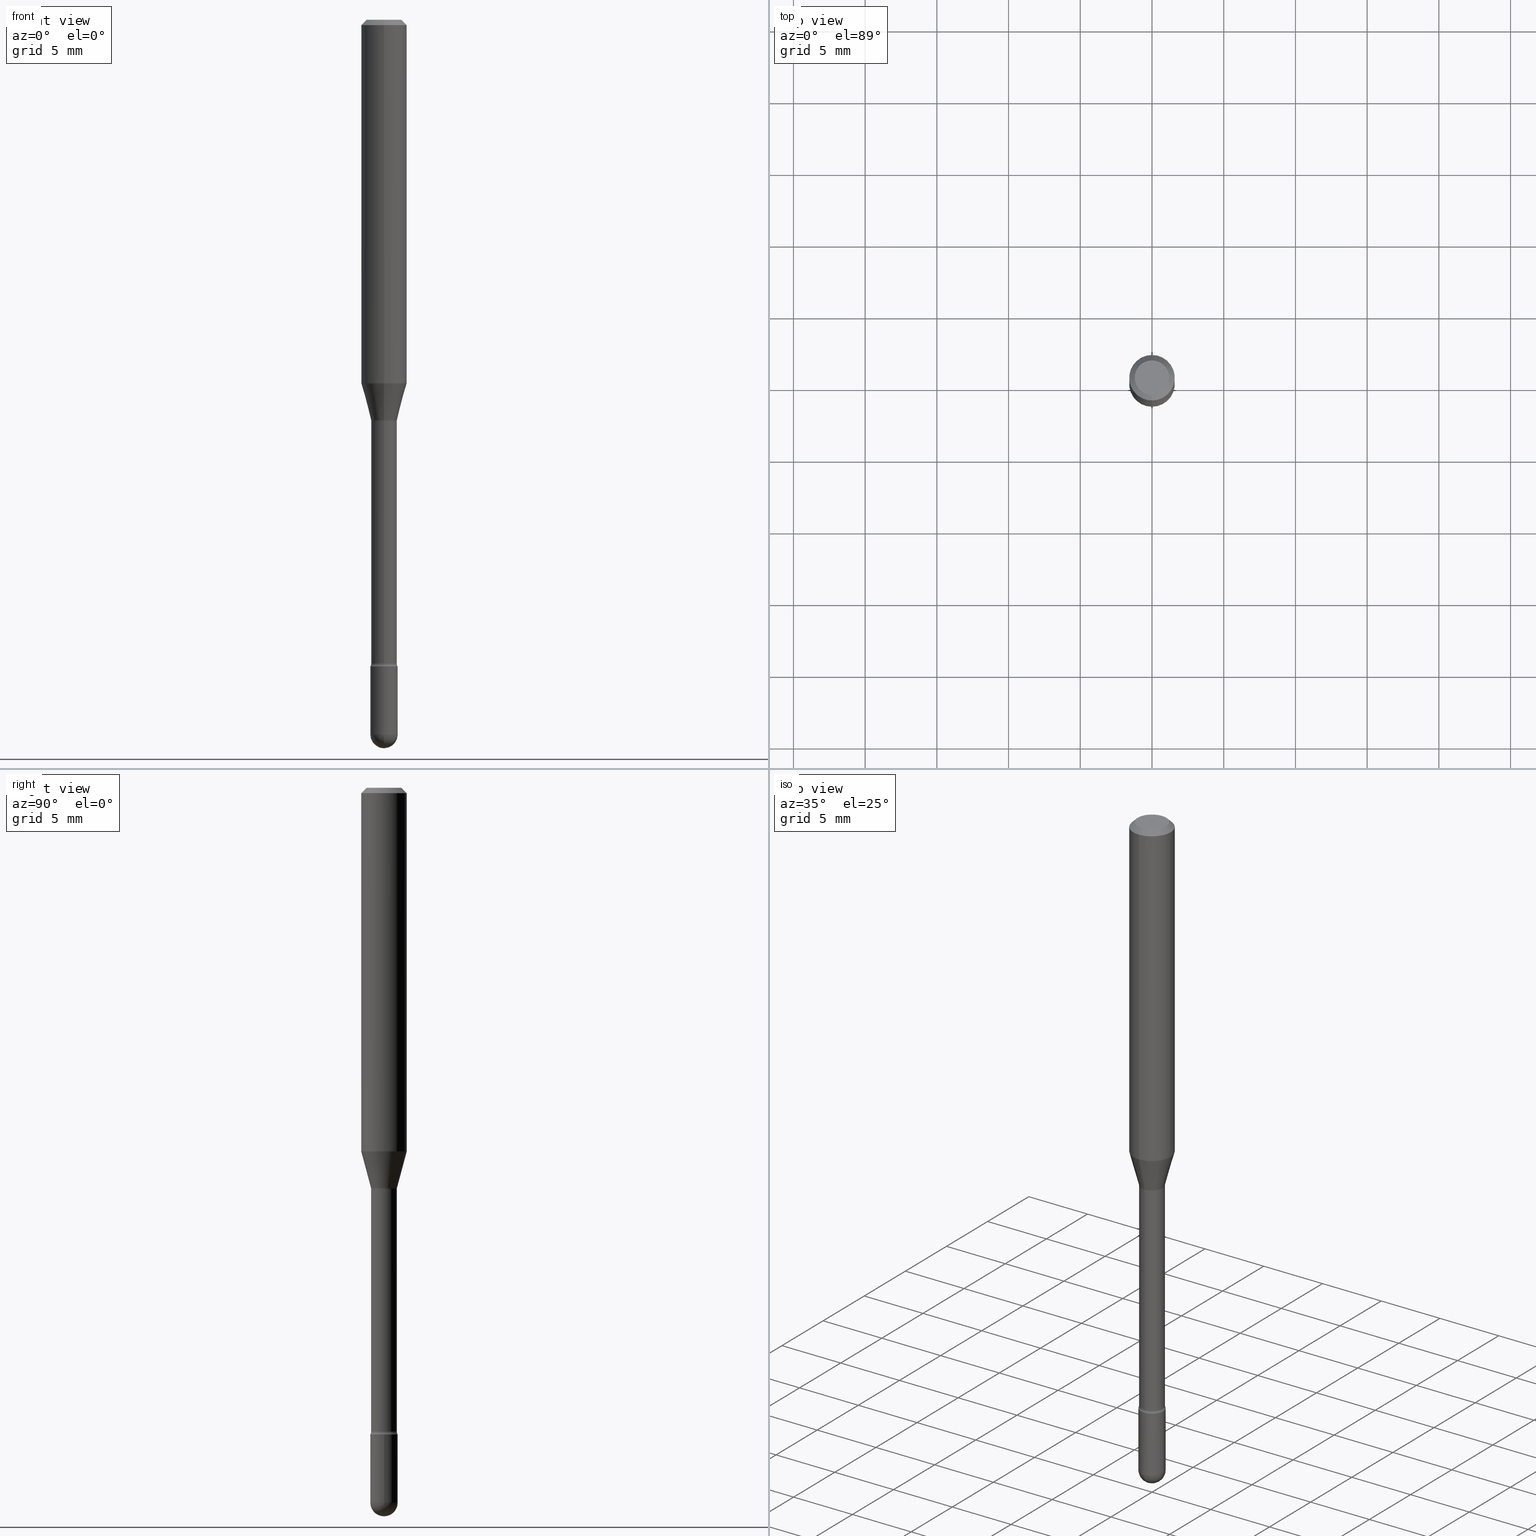
[diagram: canonical four-view strip — front | top / right | iso, engineering-drawing reading convention]
A machine part, canonical four-view strip (front | top / right | iso — engineering-drawing reading convention). The complete STEP part file that produces these views, byte-faithful:
ISO-10303-21;
HEADER;
FILE_DESCRIPTION (( 'STEP AP203' ),
    '1' );
FILE_NAME ('09330.STEP',
    '2024-04-09T22:34:05',
    ( '' ),
    ( '' ),
    'SwSTEP 2.0',
    'SolidWorks 2023',
    '' );
FILE_SCHEMA (( 'CONFIG_CONTROL_DESIGN' ));
ENDSEC;

DATA;
#1 = FACE_OUTER_BOUND ( 'NONE', #80, .T. ) ;
#2 = CARTESIAN_POINT ( 'NONE',  ( 2.664535259100808486E-16, 0.03749999999999379524, -1.775000000000000133 ) ) ;
#3 = AXIS2_PLACEMENT_3D ( 'NONE', #563, #399, #353 ) ;
#4 = VECTOR ( 'NONE', #23, 39.37007874015748143 ) ;
#5 = ORIENTED_EDGE ( 'NONE', *, *, #473, .T. ) ;
#6 = EDGE_CURVE ( 'NONE', #238, #259, #223, .T. ) ;
#7 = FACE_OUTER_BOUND ( 'NONE', #106, .T. ) ;
#8 = CC_DESIGN_DATE_AND_TIME_ASSIGNMENT ( #207, #115, ( #332 ) ) ;
#9 = CARTESIAN_POINT ( 'NONE',  ( 4.340707130978617347E-29, -6.197379376446583794E-15, -1.775000000000000133 ) ) ;
#10 = EDGE_LOOP ( 'NONE', ( #56, #212, #231, #66 ) ) ;
#11 = CARTESIAN_POINT ( 'NONE',  ( 4.440892098500869722E-16, 0.06249999999999653055, -0.9983016154937485176 ) ) ;
#12 = DIRECTION ( 'NONE',  ( -6.982962677686266711E-15, -1.000000000000000000, 3.819579138641765120E-15 ) ) ;
#13 = ADVANCED_FACE ( 'NONE', ( #276 ), #50, .T. ) ;
#14 = CIRCLE ( 'NONE', #201, 0.03525000000000008682 ) ;
#15 = CC_DESIGN_APPROVAL ( #117, ( #332 ) ) ;
#16 = DIRECTION ( 'NONE',  ( -6.982962677686265922E-15, -1.000000000000000000, 3.491486425241759159E-15 ) ) ;
#17 = CARTESIAN_POINT ( 'NONE',  ( 2.618611004132830729E-16, 0.03749999999999317074, -1.962499999999999689 ) ) ;
#18 = CARTESIAN_POINT ( 'NONE',  ( 3.840629472727447874E-16, 0.04749999999999999362, -2.485923956665947374E-16 ) ) ;
#19 = LINE ( 'NONE', #153, #4 ) ;
#20 = CIRCLE ( 'NONE', #564, 0.03749999999999999861 ) ;
#21 = CIRCLE ( 'NONE', #52, 0.01499999999999998557 ) ;
#22 = ADVANCED_FACE ( 'NONE', ( #307 ), #149, .T. ) ;
#23 = DIRECTION ( 'NONE',  ( 4.937700262164548042E-15, 0.7071067811865451302, -0.7071067811865499042 ) ) ;
#24 = DIRECTION ( 'NONE',  ( 1.000000000000000000, -6.982962677686268288E-15, 0.000000000000000000 ) ) ;
#25 = SECURITY_CLASSIFICATION_LEVEL ( 'unclassified' ) ;
#26 = CARTESIAN_POINT ( 'NONE',  ( 3.570477247194939493E-16, 0.05024999999999388983, -1.767098259685361050 ) ) ;
#27 = ADVANCED_FACE ( 'NONE', ( #1 ), #489, .T. ) ;
#28 = ORIENTED_EDGE ( 'NONE', *, *, #537, .F. ) ;
#29 = EDGE_LOOP ( 'NONE', ( #157, #534 ) ) ;
#30 = DIRECTION ( 'NONE',  ( -6.982962677686265922E-15, -1.000000000000000000, 4.370956789862821150E-15 ) ) ;
#31 = DIRECTION ( 'NONE',  ( -2.445465254371968142E-29, 3.491486425241759553E-15, 1.000000000000000000 ) ) ;
#32 = CIRCLE ( 'NONE', #414, 0.06250000000000000000 ) ;
#33 = EDGE_CURVE ( 'NONE', #99, #333, #460, .T. ) ;
#34 = CIRCLE ( 'NONE', #471, 0.03749999999999999861 ) ;
#35 = ORIENTED_EDGE ( 'NONE', *, *, #347, .T. ) ;
#36 = CARTESIAN_POINT ( 'NONE',  ( 4.321383671524591751E-29, -6.169790597593636121E-15, -1.767098259685360606 ) ) ;
#37 = DIRECTION ( 'NONE',  ( -2.445465254371968142E-29, 3.491486425241759553E-15, 1.000000000000000000 ) ) ;
#38 = CC_DESIGN_PERSON_AND_ORGANIZATION_ASSIGNMENT ( #338, #514, ( #191 ) ) ;
#39 = ORIENTED_EDGE ( 'NONE', *, *, #266, .T. ) ;
#40 = DIRECTION ( 'NONE',  ( -2.445465254371968142E-29, 3.491486425241759553E-15, 1.000000000000000000 ) ) ;
#41 = DIRECTION ( 'NONE',  ( -6.982962677686265922E-15, -1.000000000000000000, 3.491486425241759948E-15 ) ) ;
#42 = VECTOR ( 'NONE', #527, 39.37007874015748143 ) ;
#43 = CARTESIAN_POINT ( 'NONE',  ( -2.664535259099897351E-16, -0.03750000000000687506, -1.962499999999999689 ) ) ;
#44 = CALENDAR_DATE ( 2024, 9, 4 ) ;
#45 = CARTESIAN_POINT ( 'NONE',  ( 2.685347059207164379E-29, -3.833975063650027197E-15, -1.098092501787273134 ) ) ;
#46 = LINE ( 'NONE', #193, #188 ) ;
#47 = ADVANCED_FACE ( 'NONE', ( #169 ), #478, .F. ) ;
#48 = FACE_OUTER_BOUND ( 'NONE', #453, .T. ) ;
#49 = ORIENTED_EDGE ( 'NONE', *, *, #141, .F. ) ;
#50 = CONICAL_SURFACE ( 'NONE', #160, 0.06250000000000000000, 0.7853981633974483900 ) ;
#51 = COORDINATED_UNIVERSAL_TIME_OFFSET ( 5, 0, .BEHIND. ) ;
#52 = AXIS2_PLACEMENT_3D ( 'NONE', #250, #383, #510 ) ;
#53 = CARTESIAN_POINT ( 'NONE',  ( 2.694844967945245181E-29, -3.847524406305537036E-15, -1.101974787463810834 ) ) ;
#54 = DIRECTION ( 'NONE',  ( -6.982962677686266711E-15, -1.000000000000000000, 0.000000000000000000 ) ) ;
#55 = CARTESIAN_POINT ( 'NONE',  ( -2.461494343884138594E-16, -0.03525000000000384076, -1.101974787463810834 ) ) ;
#56 = ORIENTED_EDGE ( 'NONE', *, *, #545, .F. ) ;
#57 = DIRECTION ( 'NONE',  ( -2.445465254371968142E-29, 3.491486425241759553E-15, 1.000000000000000000 ) ) ;
#58 = PLANE ( 'NONE',  #488 ) ;
#59 = EDGE_CURVE ( 'NONE', #62, #354, #516, .T. ) ;
#60 = VERTEX_POINT ( 'NONE', #270 ) ;
#61 = DIRECTION ( 'NONE',  ( 1.000000000000000000, -7.105427357601001070E-15, 4.926315570832500212E-29 ) ) ;
#62 = VERTEX_POINT ( 'NONE', #404 ) ;
#63 = AXIS2_PLACEMENT_3D ( 'NONE', #262, #217, #321 ) ;
#64 = CIRCLE ( 'NONE', #435, 0.01499999999999997689 ) ;
#65 = DIRECTION ( 'NONE',  ( -6.982962677686265922E-15, -1.000000000000000000, 3.491486425241759159E-15 ) ) ;
#66 = ORIENTED_EDGE ( 'NONE', *, *, #120, .F. ) ;
#67 = ADVANCED_FACE ( 'NONE', ( #7 ), #362, .T. ) ;
#68 = DIRECTION ( 'NONE',  ( -2.445468806185136597E-29, 3.491481338843145583E-15, 1.000000000000000000 ) ) ;
#69 = PERSON_AND_ORGANIZATION ( #214, #167 ) ;
#70 = ORIENTED_EDGE ( 'NONE', *, *, #545, .T. ) ;
#71 = ORIENTED_EDGE ( 'NONE', *, *, #96, .F. ) ;
#72 = AXIS2_PLACEMENT_3D ( 'NONE', #53, #415, #16 ) ;
#73 = CONICAL_SURFACE ( 'NONE', #178, 0.03576111260566397498, 0.2617993877991499629 ) ;
#74 = CARTESIAN_POINT ( 'NONE',  ( 0.000000000000000000, 0.000000000000000000, 0.000000000000000000 ) ) ;
#75 = ORIENTED_EDGE ( 'NONE', *, *, #314, .T. ) ;
#76 = DIRECTION ( 'NONE',  ( 6.982962677686265922E-15, 1.000000000000000000, 0.000000000000000000 ) ) ;
#77 = ADVANCED_FACE ( 'NONE', ( #213 ), #268, .F. ) ;
#78 = ORIENTED_EDGE ( 'NONE', *, *, #396, .T. ) ;
#79 = CARTESIAN_POINT ( 'NONE',  ( -2.497185146378605472E-16, -0.03576111260566781219, -1.098092501787272912 ) ) ;
#80 = EDGE_LOOP ( 'NONE', ( #501, #155, #242, #467 ) ) ;
#81 = AXIS2_PLACEMENT_3D ( 'NONE', #185, #370, #132 ) ;
#82 = CIRCLE ( 'NONE', #277, 0.04749999999999999362 ) ;
#83 = DIRECTION ( 'NONE',  ( 6.982962677686265922E-15, 1.000000000000000000, -3.483106191921935554E-15 ) ) ;
#84 = CYLINDRICAL_SURFACE ( 'NONE', #550, 0.03749999999999999861 ) ;
#85 = CC_DESIGN_DATE_AND_TIME_ASSIGNMENT ( #93, #408, ( #400 ) ) ;
#86 = CARTESIAN_POINT ( 'NONE',  ( 2.584599201327800595E-16, 0.03524999999999392508, -1.767098259685360384 ) ) ;
#87 = ORIENTED_EDGE ( 'NONE', *, *, #463, .T. ) ;
#88 = CARTESIAN_POINT ( 'NONE',  ( -2.618611004131915157E-16, -0.03750000000000618811, -1.775000000000000133 ) ) ;
#89 =( NAMED_UNIT ( * ) SI_UNIT ( $, .STERADIAN. ) SOLID_ANGLE_UNIT ( ) );
#90 = ORIENTED_EDGE ( 'NONE', *, *, #396, .F. ) ;
#91 = DIRECTION ( 'NONE',  ( -2.445468806185136877E-29, 3.491481338843145188E-15, 1.000000000000000000 ) ) ;
#92 = CIRCLE ( 'NONE', #166, 0.03750000000000004025 ) ;
#93 = DATE_AND_TIME ( #494, #320 ) ;
#94 = FACE_OUTER_BOUND ( 'NONE', #543, .T. ) ;
#95 = VERTEX_POINT ( 'NONE', #446 ) ;
#96 = EDGE_CURVE ( 'NONE', #328, #281, #368, .T. ) ;
#97 = DIRECTION ( 'NONE',  ( -2.445465254371968142E-29, 3.491486425241759553E-15, 1.000000000000000000 ) ) ;
#98 = PERSON_AND_ORGANIZATION ( #214, #167 ) ;
#99 = VERTEX_POINT ( 'NONE', #11 ) ;
#100 = FACE_OUTER_BOUND ( 'NONE', #260, .T. ) ;
#101 = ORIENTED_EDGE ( 'NONE', *, *, #473, .F. ) ;
#102 = VECTOR ( 'NONE', #91, 39.37007874015748143 ) ;
#103 = PERSON_AND_ORGANIZATION ( #214, #167 ) ;
#104 = CARTESIAN_POINT ( 'NONE',  ( -1.169113584055446105E-44, 1.669184350826100908E-30, 4.780733988912460139E-16 ) ) ;
#105 = ADVANCED_FACE ( 'NONE', ( #187 ), #150, .F. ) ;
#106 = EDGE_LOOP ( 'NONE', ( #491, #228, #535, #90 ) ) ;
#107 = DIRECTION ( 'NONE',  ( -2.445465254371968142E-29, 3.491486425241759553E-15, 1.000000000000000000 ) ) ;
#108 = PERSON_AND_ORGANIZATION_ROLE ( 'classification_officer' ) ;
#109 = CARTESIAN_POINT ( 'NONE',  ( 3.668197881557972567E-31, -5.237229637862668616E-17, -0.01500000000000008271 ) ) ;
#110 = CARTESIAN_POINT ( 'NONE',  ( 2.694844967945245181E-29, -3.847524406305537036E-15, -1.101974787463810834 ) ) ;
#111 = CIRCLE ( 'NONE', #444, 0.06250000000000000000 ) ;
#112 = CIRCLE ( 'NONE', #416, 0.03576111260566397498 ) ;
#113 = EDGE_CURVE ( 'NONE', #202, #333, #46, .T. ) ;
#114 = DIRECTION ( 'NONE',  ( 7.105427357601001859E-15, 1.000000000000000000, 0.000000000000000000 ) ) ;
#115 = DATE_TIME_ROLE ( 'classification_date' ) ;
#116 = ORIENTED_EDGE ( 'NONE', *, *, #445, .T. ) ;
#117 = APPROVAL ( #251, 'UNSPECIFIED' ) ;
#118 = CIRCLE ( 'NONE', #524, 0.03749999999999999861 ) ;
#119 = AXIS2_PLACEMENT_3D ( 'NONE', #462, #107, #432 ) ;
#120 = EDGE_CURVE ( 'NONE', #127, #312, #434, .T. ) ;
#121 = ORIENTED_EDGE ( 'NONE', *, *, #165, .T. ) ;
#122 = DIRECTION ( 'NONE',  ( -4.851104656540964275E-15, -0.7071067811865500152, -0.7071067811865450192 ) ) ;
#123 = DIRECTION ( 'NONE',  ( -6.982962677686265922E-15, -1.000000000000000000, 3.491486425241759553E-15 ) ) ;
#124 = CYLINDRICAL_SURFACE ( 'NONE', #209, 0.06250000000000000000 ) ;
#125 = ORIENTED_EDGE ( 'NONE', *, *, #161, .T. ) ;
#126 = ORIENTED_EDGE ( 'NONE', *, *, #337, .T. ) ;
#127 = VERTEX_POINT ( 'NONE', #454 ) ;
#128 = ADVANCED_FACE ( 'NONE', ( #532 ), #84, .T. ) ;
#129 = CIRCLE ( 'NONE', #162, 0.03749999999999999861 ) ;
#130 = ORIENTED_EDGE ( 'NONE', *, *, #6, .F. ) ;
#131 = DIRECTION ( 'NONE',  ( -2.445468806185136597E-29, 3.491481338843145583E-15, 1.000000000000000000 ) ) ;
#132 = DIRECTION ( 'NONE',  ( -6.982962677686266711E-15, -1.000000000000000000, 3.819579138641765120E-15 ) ) ;
#133 = ORIENTED_EDGE ( 'NONE', *, *, #357, .F. ) ;
#134 = DIRECTION ( 'NONE',  ( -6.982962677686265922E-15, -1.000000000000000000, 3.491486425241759948E-15 ) ) ;
#135 = CARTESIAN_POINT ( 'NONE',  ( 2.504663143554787774E-16, 0.03524999999999615247, -1.101974787463811278 ) ) ;
#136 = APPROVAL_DATE_TIME ( #225, #304 ) ;
#137 = ORIENTED_EDGE ( 'NONE', *, *, #274, .T. ) ;
#138 = AXIS2_PLACEMENT_3D ( 'NONE', #377, #407, #359 ) ;
#139 = CARTESIAN_POINT ( 'NONE',  ( 2.023527029719468871E-45, -2.889117273218621529E-31, -8.274679046761115566E-17 ) ) ;
#140 = AXIS2_PLACEMENT_3D ( 'NONE', #110, #298, #65 ) ;
#141 = EDGE_CURVE ( 'NONE', #333, #481, #174, .T. ) ;
#142 = ORIENTED_EDGE ( 'NONE', *, *, #347, .F. ) ;
#143 = EDGE_LOOP ( 'NONE', ( #151, #382 ) ) ;
#144 = DIRECTION ( 'NONE',  ( 6.982962677686265922E-15, 1.000000000000000000, 0.000000000000000000 ) ) ;
#145 = CC_DESIGN_PERSON_AND_ORGANIZATION_ASSIGNMENT ( #103, #108, ( #332 ) ) ;
#146 = CARTESIAN_POINT ( 'NONE',  ( 3.668197881557972567E-31, -5.237229637862668616E-17, -0.01500000000000008271 ) ) ;
#147 = CC_DESIGN_PERSON_AND_ORGANIZATION_ASSIGNMENT ( #69, #511, ( #191 ) ) ;
#148 = DIRECTION ( 'NONE',  ( -2.445465254371968142E-29, 3.491486425241759553E-15, 1.000000000000000000 ) ) ;
#149 = CONICAL_SURFACE ( 'NONE', #402, 0.03576111260566397498, 0.2617993877991499629 ) ;
#150 = TOROIDAL_SURFACE ( 'NONE', #72, 0.05024999999999999606, 0.01499999999999998904 ) ;
#151 = ORIENTED_EDGE ( 'NONE', *, *, #248, .F. ) ;
#152 = VERTEX_POINT ( 'NONE', #86 ) ;
#153 = CARTESIAN_POINT ( 'NONE',  ( 4.364351673553919652E-16, 0.06249999999999995143, -0.01500000000000030129 ) ) ;
#154 = CARTESIAN_POINT ( 'NONE',  ( -0.03749999999999999861, -6.258252226053091317E-15, -1.775000000000000133 ) ) ;
#155 = ORIENTED_EDGE ( 'NONE', *, *, #33, .T. ) ;
#156 = CARTESIAN_POINT ( 'NONE',  ( 3.570477247194771860E-16, 0.05024999999999614497, -1.101974787463811056 ) ) ;
#157 = ORIENTED_EDGE ( 'NONE', *, *, #388, .T. ) ;
#158 = ORIENTED_EDGE ( 'NONE', *, *, #372, .F. ) ;
#159 = DIRECTION ( 'NONE',  ( 1.000000000000000000, -6.982962677686268288E-15, 0.000000000000000000 ) ) ;
#160 = AXIS2_PLACEMENT_3D ( 'NONE', #175, #482, #83 ) ;
#161 = EDGE_CURVE ( 'NONE', #99, #95, #177, .T. ) ;
#162 = AXIS2_PLACEMENT_3D ( 'NONE', #331, #163, #159 ) ;
#163 = DIRECTION ( 'NONE',  ( -2.445468806185136597E-29, 3.491481338843145583E-15, 1.000000000000000000 ) ) ;
#164 = DIRECTION ( 'NONE',  ( -1.000000000000000000, 6.982962677686265922E-15, -4.883557194083112901E-29 ) ) ;
#165 = EDGE_CURVE ( 'NONE', #394, #481, #313, .T. ) ;
#166 = AXIS2_PLACEMENT_3D ( 'NONE', #220, #278, #144 ) ;
#167 = ORGANIZATION ( 'UNSPECIFIED', 'UNSPECIFIED', '' ) ;
#168 = CARTESIAN_POINT ( 'NONE',  ( 2.685347059207164379E-29, -3.833975063650027197E-15, -1.098092501787273134 ) ) ;
#169 = FACE_OUTER_BOUND ( 'NONE', #10, .T. ) ;
#170 = CARTESIAN_POINT ( 'NONE',  ( -4.364351673553916201E-16, -0.06250000000000000000, 6.962913004688561093E-16 ) ) ;
#171 = ADVANCED_FACE ( 'NONE', ( #271 ), #124, .T. ) ;
#172 = ORIENTED_EDGE ( 'NONE', *, *, #438, .F. ) ;
#173 = ORIENTED_EDGE ( 'NONE', *, *, #352, .T. ) ;
#174 = LINE ( 'NONE', #170, #222 ) ;
#175 = CARTESIAN_POINT ( 'NONE',  ( 3.668197881557972567E-31, -5.237229637862668616E-17, -0.01500000000000008271 ) ) ;
#176 = AXIS2_PLACEMENT_3D ( 'NONE', #541, #546, #498 ) ;
#177 = LINE ( 'NONE', #267, #42 ) ;
#178 = AXIS2_PLACEMENT_3D ( 'NONE', #45, #412, #12 ) ;
#179 = ADVANCED_BREP_SHAPE_REPRESENTATION ( '09330', ( #336, #525, #224 ), #427 ) ;
#180 = DIRECTION ( 'NONE',  ( -2.445468806185136597E-29, 3.491481338843145583E-15, 1.000000000000000000 ) ) ;
#181 = ORIENTED_EDGE ( 'NONE', *, *, #235, .T. ) ;
#182 = CARTESIAN_POINT ( 'NONE',  ( -0.03749999999999999861, 2.664535259100375598E-16, -1.844600658845589808E-30 ) ) ;
#183 = CARTESIAN_POINT ( 'NONE',  ( 2.441311914073365852E-29, -3.485556538793341018E-15, -0.9983016154937482955 ) ) ;
#184 = ADVANCED_FACE ( 'NONE', ( #439 ), #533, .F. ) ;
#185 = CARTESIAN_POINT ( 'NONE',  ( 2.685347059207164379E-29, -3.833975063650027197E-15, -1.098092501787273134 ) ) ;
#186 = ORIENTED_EDGE ( 'NONE', *, *, #566, .T. ) ;
#187 = FACE_OUTER_BOUND ( 'NONE', #269, .T. ) ;
#188 = VECTOR ( 'NONE', #197, 39.37007874015748143 ) ;
#189 = DIRECTION ( 'NONE',  ( -2.445468806185136597E-29, 3.491481338843145583E-15, 1.000000000000000000 ) ) ;
#190 = DIRECTION ( 'NONE',  ( -2.445468806185136597E-29, 3.491481338843145583E-15, 1.000000000000000000 ) ) ;
#191 = PRODUCT_DEFINITION_FORMATION_WITH_SPECIFIED_SOURCE ( 'ANY', '', #349, .NOT_KNOWN. ) ;
#192 = CARTESIAN_POINT ( 'NONE',  ( 0.000000000000000000, 0.000000000000000000, 0.000000000000000000 ) ) ;
#193 = CARTESIAN_POINT ( 'NONE',  ( -2.497185146378605472E-16, -0.03576111260566781219, -1.098092501787272912 ) ) ;
#194 = FACE_OUTER_BOUND ( 'NONE', #484, .T. ) ;
#195 = LENGTH_MEASURE_WITH_UNIT ( LENGTH_MEASURE( 0.02539999999999999897 ), #499 );
#196 = CC_DESIGN_PERSON_AND_ORGANIZATION_ASSIGNMENT ( #539, #318, ( #400 ) ) ;
#197 = DIRECTION ( 'NONE',  ( -1.807323732225328167E-15, -0.2588190451025179084, 0.9659258262890690894 ) ) ;
#198 = EDGE_LOOP ( 'NONE', ( #254, #125, #142, #49 ) ) ;
#199 = CLOSED_SHELL ( 'NONE', ( #105, #456, #47, #211, #171, #411, #22, #27, #13, #77, #554, #184, #523, #423 ) ) ;
#200 = DIRECTION ( 'NONE',  ( 1.000000000000000000, -6.982962677686268288E-15, 0.000000000000000000 ) ) ;
#201 = AXIS2_PLACEMENT_3D ( 'NONE', #422, #477, #303 ) ;
#202 = VERTEX_POINT ( 'NONE', #79 ) ;
#203 = DIRECTION ( 'NONE',  ( 1.839019923739597949E-15, 0.2588190451025246253, 0.9659258262890670910 ) ) ;
#204 = CALENDAR_DATE ( 2024, 9, 4 ) ;
#205 = DIRECTION ( 'NONE',  ( -6.982962677686266711E-15, -1.000000000000000000, 3.819579138641765120E-15 ) ) ;
#206 = ADVANCED_FACE ( 'NONE', ( #100 ), #283, .T. ) ;
#207 = DATE_AND_TIME ( #334, #264 ) ;
#208 = FACE_OUTER_BOUND ( 'NONE', #143, .T. ) ;
#209 = AXIS2_PLACEMENT_3D ( 'NONE', #483, #450, #41 ) ;
#210 = APPROVAL_PERSON_ORGANIZATION ( #98, #304, #273 ) ;
#211 = ADVANCED_FACE ( 'NONE', ( #324 ), #507, .T. ) ;
#212 = ORIENTED_EDGE ( 'NONE', *, *, #537, .T. ) ;
#213 = FACE_OUTER_BOUND ( 'NONE', #29, .T. ) ;
#214 = PERSON ( 'UNSPECIFIED', 'UNSPECIFIED', 'UNSPECIFIED', ('UNSPECIFIED'), ('UNSPECIFIED'), ('UNSPECIFIED') ) ;
#215 = VECTOR ( 'NONE', #373, 39.37007874015748143 ) ;
#216 = AXIS2_PLACEMENT_3D ( 'NONE', #156, #420, #114 ) ;
#217 = DIRECTION ( 'NONE',  ( -2.445465254371968142E-29, 3.491486425241759553E-15, 1.000000000000000000 ) ) ;
#218 = CARTESIAN_POINT ( 'NONE',  ( 3.316907271900976096E-16, 0.04749999999999999362, 3.181769901283382890E-17 ) ) ;
#219 = ORIENTED_EDGE ( 'NONE', *, *, #113, .T. ) ;
#220 = CARTESIAN_POINT ( 'NONE',  ( 4.799232532138329899E-29, -6.852032127479672876E-15, -1.962499999999999911 ) ) ;
#221 = ORIENTED_EDGE ( 'NONE', *, *, #485, .F. ) ;
#222 = VECTOR ( 'NONE', #257, 39.37007874015748143 ) ;
#223 = LINE ( 'NONE', #182, #102 ) ;
#224 = AXIS2_PLACEMENT_3D ( 'NONE', #192, #371, #227 ) ;
#225 = DATE_AND_TIME ( #44, #391 ) ;
#226 = EDGE_CURVE ( 'NONE', #281, #328, #330, .T. ) ;
#227 = DIRECTION ( 'NONE',  ( 1.000000000000000000, 0.000000000000000000, 0.000000000000000000 ) ) ;
#228 = ORIENTED_EDGE ( 'NONE', *, *, #59, .T. ) ;
#229 = APPLICATION_CONTEXT ( 'configuration controlled 3d designs of mechanical parts and assemblies' ) ;
#230 = DIRECTION ( 'NONE',  ( -2.438088387897960049E-29, 3.491481338843145188E-15, 1.000000000000000000 ) ) ;
#231 = ORIENTED_EDGE ( 'NONE', *, *, #253, .T. ) ;
#232 = AXIS2_PLACEMENT_3D ( 'NONE', #36, #40, #123 ) ;
#233 = CARTESIAN_POINT ( 'NONE',  ( 3.668197881557972567E-31, -5.237229637862668616E-17, -0.01500000000000008271 ) ) ;
#234 = CC_DESIGN_APPROVAL ( #304, ( #400 ) ) ;
#235 = EDGE_CURVE ( 'NONE', #127, #152, #14, .T. ) ;
#236 = ORIENTED_EDGE ( 'NONE', *, *, #479, .F. ) ;
#237 = CARTESIAN_POINT ( 'NONE',  ( 2.540979878465616774E-16, 0.03576111260566014471, -1.098092501787273356 ) ) ;
#238 = VERTEX_POINT ( 'NONE', #258 ) ;
#239 = SHAPE_DEFINITION_REPRESENTATION ( #522, #179 ) ;
#240 = DIRECTION ( 'NONE',  ( -6.982962677686265133E-15, -1.000000000000000000, 3.874961693140799059E-15 ) ) ;
#241 = DIRECTION ( 'NONE',  ( -6.982962677686265922E-15, -1.000000000000000000, 3.491486425241759553E-15 ) ) ;
#242 = ORIENTED_EDGE ( 'NONE', *, *, #141, .T. ) ;
#243 = DIRECTION ( 'NONE',  ( -2.445465254371967862E-29, 3.491486425241759553E-15, 1.000000000000000000 ) ) ;
#244 = CARTESIAN_POINT ( 'NONE',  ( 4.799232532138329338E-29, -6.852032127479672087E-15, -1.962499999999999689 ) ) ;
#245 = AXIS2_PLACEMENT_3D ( 'NONE', #233, #538, #536 ) ;
#246 = ORIENTED_EDGE ( 'NONE', *, *, #226, .F. ) ;
#247 = AXIS2_PLACEMENT_3D ( 'NONE', #104, #292, #428 ) ;
#248 = EDGE_CURVE ( 'NONE', #312, #346, #118, .T. ) ;
#249 = LINE ( 'NONE', #302, #544 ) ;
#250 = CARTESIAN_POINT ( 'NONE',  ( -3.508938745537078699E-16, -0.05025000000000384714, -1.101974787463810834 ) ) ;
#251 = APPROVAL_STATUS ( 'not_yet_approved' ) ;
#252 = ORIENTED_EDGE ( 'NONE', *, *, #248, .T. ) ;
#253 = EDGE_CURVE ( 'NONE', #346, #312, #275, .T. ) ;
#254 = ORIENTED_EDGE ( 'NONE', *, *, #372, .T. ) ;
#255 = AXIS2_PLACEMENT_3D ( 'NONE', #109, #286, #465 ) ;
#256 = AXIS2_PLACEMENT_3D ( 'NONE', #466, #348, #54 ) ;
#257 = DIRECTION ( 'NONE',  ( -2.445465254371968142E-29, 3.491486425241759553E-15, 1.000000000000000000 ) ) ;
#258 = CARTESIAN_POINT ( 'NONE',  ( -0.03749999999999999861, -6.258252226053091317E-15, -1.962499999999999689 ) ) ;
#259 = VERTEX_POINT ( 'NONE', #154 ) ;
#260 = EDGE_LOOP ( 'NONE', ( #526, #75, #480, #300 ) ) ;
#261 = APPLICATION_CONTEXT ( 'configuration controlled 3d designs of mechanical parts and assemblies' ) ;
#262 = CARTESIAN_POINT ( 'NONE',  ( 4.321383671524591751E-29, -6.169790597593636121E-15, -1.767098259685360606 ) ) ;
#263 = CIRCLE ( 'NONE', #138, 0.03749999999999999861 ) ;
#264 = LOCAL_TIME ( 18, 34, 5.000000000000000000, #340 ) ;
#265 = DIRECTION ( 'NONE',  ( -2.445465254371968142E-29, 3.491486425241759553E-15, 1.000000000000000000 ) ) ;
#266 = EDGE_CURVE ( 'NONE', #152, #328, #374, .T. ) ;
#267 = CARTESIAN_POINT ( 'NONE',  ( 4.440892098500625669E-16, 0.06250000000000000000, 2.598554973136360665E-16 ) ) ;
#268 = PLANE ( 'NONE',  #451 ) ;
#269 = EDGE_LOOP ( 'NONE', ( #437, #116, #409, #520 ) ) ;
#270 = CARTESIAN_POINT ( 'NONE',  ( 3.490935988483243248E-16, 0.03576111260566014471, -1.098092501787273356 ) ) ;
#271 = FACE_OUTER_BOUND ( 'NONE', #198, .T. ) ;
#272 = CARTESIAN_POINT ( 'NONE',  ( -2.461494343884411737E-16, -0.03525000000000003825, 6.011482953810182667E-16 ) ) ;
#273 = APPROVAL_ROLE ( '' ) ;
#274 = EDGE_CURVE ( 'NONE', #354, #555, #20, .T. ) ;
#275 = CIRCLE ( 'NONE', #342, 0.03749999999999999861 ) ;
#276 = FACE_OUTER_BOUND ( 'NONE', #496, .T. ) ;
#277 = AXIS2_PLACEMENT_3D ( 'NONE', #139, #280, #457 ) ;
#278 = DIRECTION ( 'NONE',  ( 1.000000000000000000, -6.982962677686265922E-15, 4.883557194083112340E-29 ) ) ;
#279 = EDGE_LOOP ( 'NONE', ( #5, #367 ) ) ;
#280 = DIRECTION ( 'NONE',  ( -2.445465254371968142E-29, 3.491486425241759553E-15, 1.000000000000000000 ) ) ;
#281 = VERTEX_POINT ( 'NONE', #55 ) ;
#282 = EDGE_CURVE ( 'NONE', #238, #354, #263, .T. ) ;
#283 = SPHERICAL_SURFACE ( 'NONE', #288, 0.03750000000000004025 ) ;
#284 = CARTESIAN_POINT ( 'NONE',  ( -4.364351673553672147E-16, -0.06250000000000348332, -0.9983016154937480735 ) ) ;
#285 = APPROVAL_STATUS ( 'not_yet_approved' ) ;
#286 = DIRECTION ( 'NONE',  ( 2.445465254371968142E-29, -3.491486425241759553E-15, -1.000000000000000000 ) ) ;
#287 = DIRECTION ( 'NONE',  ( -6.982962677686265133E-15, -1.000000000000000000, 3.874961693140799059E-15 ) ) ;
#288 = AXIS2_PLACEMENT_3D ( 'NONE', #417, #164, #76 ) ;
#289 = CARTESIAN_POINT ( 'NONE',  ( 4.340707130978617347E-29, -6.197379376446583794E-15, -1.775000000000000133 ) ) ;
#290 = EDGE_LOOP ( 'NONE', ( #28, #469, #429, #252 ) ) ;
#291 = DATE_AND_TIME ( #561, #403 ) ;
#292 = DIRECTION ( 'NONE',  ( -2.445465254371968142E-29, 3.491486425241759553E-15, 1.000000000000000000 ) ) ;
#293 = ORIENTED_EDGE ( 'NONE', *, *, #6, .T. ) ;
#294 = COORDINATED_UNIVERSAL_TIME_OFFSET ( 5, 0, .BEHIND. ) ;
#295 = DIRECTION ( 'NONE',  ( -2.445468806185136877E-29, 3.491481338843145188E-15, 1.000000000000000000 ) ) ;
#296 = CARTESIAN_POINT ( 'NONE',  ( 2.694841053936684124E-29, -3.847530011388569160E-15, -1.101974787463811056 ) ) ;
#297 = ADVANCED_FACE ( 'NONE', ( #48 ), #405, .T. ) ;
#298 = DIRECTION ( 'NONE',  ( -2.445465254371968142E-29, 3.491486425241759553E-15, 1.000000000000000000 ) ) ;
#299 = AXIS2_PLACEMENT_3D ( 'NONE', #9, #230, #502 ) ;
#300 = ORIENTED_EDGE ( 'NONE', *, *, #274, .F. ) ;
#301 = CIRCLE ( 'NONE', #497, 0.03749999999999999861 ) ;
#302 = CARTESIAN_POINT ( 'NONE',  ( 0.03749999999999999861, -2.618611004132350016E-16, 1.828566290923475922E-30 ) ) ;
#303 = DIRECTION ( 'NONE',  ( -6.982962677686266711E-15, -1.000000000000000000, 0.000000000000000000 ) ) ;
#304 = APPROVAL ( #285, 'UNSPECIFIED' ) ;
#305 = CLOSED_SHELL ( 'NONE', ( #297, #67, #308, #206, #128 ) ) ;
#306 = AXIS2_PLACEMENT_3D ( 'NONE', #531, #309, #486 ) ;
#307 = FACE_OUTER_BOUND ( 'NONE', #421, .T. ) ;
#308 = ADVANCED_FACE ( 'NONE', ( #455 ), #326, .T. ) ;
#309 = DIRECTION ( 'NONE',  ( -1.000000000000000000, 7.105427357601001070E-15, -4.926315508542082329E-29 ) ) ;
#310 = APPROVAL_PERSON_ORGANIZATION ( #475, #117, #433 ) ;
#311 = ORIENTED_EDGE ( 'NONE', *, *, #33, .F. ) ;
#312 = VERTEX_POINT ( 'NONE', #88 ) ;
#313 = LINE ( 'NONE', #492, #319 ) ;
#314 = EDGE_CURVE ( 'NONE', #62, #413, #92, .T. ) ;
#315 = DIRECTION ( 'NONE',  ( 1.000000000000000000, -6.982962677686266711E-15, 4.876176775795935793E-29 ) ) ;
#316 = MECHANICAL_CONTEXT ( 'NONE', #229, 'mechanical' ) ;
#317 = DIRECTION ( 'NONE',  ( -2.445465254371968142E-29, 3.491486425241759553E-15, 1.000000000000000000 ) ) ;
#318 = PERSON_AND_ORGANIZATION_ROLE ( 'creator' ) ;
#319 = VECTOR ( 'NONE', #122, 39.37007874015748143 ) ;
#320 = LOCAL_TIME ( 18, 34, 5.000000000000000000, #51 ) ;
#321 = DIRECTION ( 'NONE',  ( -6.982962677686265922E-15, -1.000000000000000000, 3.491486425241759553E-15 ) ) ;
#322 = CARTESIAN_POINT ( 'NONE',  ( 4.799232532138329338E-29, -6.852032127479672087E-15, -1.962499999999999689 ) ) ;
#323 =( CONVERSION_BASED_UNIT ( 'INCH', #195 ) LENGTH_UNIT ( ) NAMED_UNIT ( #540 ) );
#324 = FACE_OUTER_BOUND ( 'NONE', #449, .T. ) ;
#325 = PERSON_AND_ORGANIZATION ( #214, #167 ) ;
#326 = PLANE ( 'NONE',  #299 ) ;
#327 = DIRECTION ( 'NONE',  ( -2.445465254371968142E-29, 3.491486425241759553E-15, 1.000000000000000000 ) ) ;
#328 = VERTEX_POINT ( 'NONE', #135 ) ;
#329 =( NAMED_UNIT ( * ) PLANE_ANGLE_UNIT ( ) SI_UNIT ( $, .RADIAN. ) );
#330 = CIRCLE ( 'NONE', #379, 0.03524999999999999661 ) ;
#331 = CARTESIAN_POINT ( 'NONE',  ( 4.340707130978617347E-29, -6.197379376446583794E-15, -1.775000000000000133 ) ) ;
#332 = SECURITY_CLASSIFICATION ( '', '', #25 ) ;
#333 = VERTEX_POINT ( 'NONE', #284 ) ;
#334 = CALENDAR_DATE ( 2024, 9, 4 ) ;
#335 = UNCERTAINTY_MEASURE_WITH_UNIT (LENGTH_MEASURE( 1.000000000000000082E-05 ), #323, 'distance_accuracy_value', 'NONE');
#336 = MANIFOLD_SOLID_BREP ( 'Body-Move/Copy2[1]', #305 ) ;
#337 = EDGE_CURVE ( 'NONE', #60, #202, #493, .T. ) ;
#338 = PERSON_AND_ORGANIZATION ( #214, #167 ) ;
#339 = ORIENTED_EDGE ( 'NONE', *, *, #165, .F. ) ;
#340 = COORDINATED_UNIVERSAL_TIME_OFFSET ( 5, 0, .BEHIND. ) ;
#341 = DIRECTION ( 'NONE',  ( 7.105427357601001859E-15, 1.000000000000000000, 0.000000000000000000 ) ) ;
#342 = AXIS2_PLACEMENT_3D ( 'NONE', #393, #440, #443 ) ;
#343 = CC_DESIGN_SECURITY_CLASSIFICATION ( #332, ( #191 ) ) ;
#344 = APPROVAL_ROLE ( '' ) ;
#345 = CARTESIAN_POINT ( 'NONE',  ( 4.340700826510243157E-29, -6.197388404804124065E-15, -1.775000000000000133 ) ) ;
#346 = VERTEX_POINT ( 'NONE', #2 ) ;
#347 = EDGE_CURVE ( 'NONE', #481, #95, #32, .T. ) ;
#348 = DIRECTION ( 'NONE',  ( -2.445465254371968142E-29, 3.491486425241759553E-15, 1.000000000000000000 ) ) ;
#349 = PRODUCT ( '09330', '09330', '', ( #316 ) ) ;
#350 = CIRCLE ( 'NONE', #256, 0.03525000000000008682 ) ;
#351 = DIRECTION ( 'NONE',  ( 6.982962677686265922E-15, 1.000000000000000000, -3.491486425241759553E-15 ) ) ;
#352 = EDGE_CURVE ( 'NONE', #95, #481, #470, .T. ) ;
#353 = DIRECTION ( 'NONE',  ( 6.982962677686265922E-15, 1.000000000000000000, 0.000000000000000000 ) ) ;
#354 = VERTEX_POINT ( 'NONE', #43 ) ;
#355 = AXIS2_PLACEMENT_3D ( 'NONE', #565, #37, #30 ) ;
#356 = AXIS2_PLACEMENT_3D ( 'NONE', #381, #548, #389 ) ;
#357 = EDGE_CURVE ( 'NONE', #127, #281, #542, .T. ) ;
#358 = DIRECTION ( 'NONE',  ( -6.982962677686266711E-15, -1.000000000000000000, 3.819579138641765120E-15 ) ) ;
#359 = DIRECTION ( 'NONE',  ( 1.000000000000000000, -6.982962677686268288E-15, 0.000000000000000000 ) ) ;
#360 = APPLICATION_PROTOCOL_DEFINITION ( 'international standard', 'config_control_design', 1994, #229 ) ;
#361 = EDGE_LOOP ( 'NONE', ( #181, #39, #246, #133 ) ) ;
#362 = SPHERICAL_SURFACE ( 'NONE', #3, 0.03750000000000004025 ) ;
#363 = CARTESIAN_POINT ( 'NONE',  ( -3.773273898774340269E-16, -0.04749999999999999362, 8.309881473137241376E-17 ) ) ;
#364 = EDGE_LOOP ( 'NONE', ( #431, #70, #500, #71 ) ) ;
#365 = DIRECTION ( 'NONE',  ( -6.982962677686265922E-15, -1.000000000000000000, 3.483106191921935554E-15 ) ) ;
#366 = PERSON_AND_ORGANIZATION ( #214, #167 ) ;
#367 = ORIENTED_EDGE ( 'NONE', *, *, #530, .T. ) ;
#368 = CIRCLE ( 'NONE', #390, 0.03524999999999999661 ) ;
#369 = CIRCLE ( 'NONE', #216, 0.01499999999999998557 ) ;
#370 = DIRECTION ( 'NONE',  ( -2.445465254371968142E-29, 3.491486425241759553E-15, 1.000000000000000000 ) ) ;
#371 = DIRECTION ( 'NONE',  ( 0.000000000000000000, 0.000000000000000000, 1.000000000000000000 ) ) ;
#372 = EDGE_CURVE ( 'NONE', #333, #99, #111, .T. ) ;
#373 = DIRECTION ( 'NONE',  ( -2.445465254371968142E-29, 3.491486425241759553E-15, 1.000000000000000000 ) ) ;
#374 = LINE ( 'NONE', #425, #397 ) ;
#375 = ORIENTED_EDGE ( 'NONE', *, *, #566, .F. ) ;
#376 = CYLINDRICAL_SURFACE ( 'NONE', #247, 0.03525000000000003825 ) ;
#377 = CARTESIAN_POINT ( 'NONE',  ( 4.799232532138329338E-29, -6.852032127479672087E-15, -1.962499999999999689 ) ) ;
#378 = ORIENTED_EDGE ( 'NONE', *, *, #445, .F. ) ;
#379 = AXIS2_PLACEMENT_3D ( 'NONE', #296, #57, #240 ) ;
#380 = VECTOR ( 'NONE', #203, 39.37007874015748854 ) ;
#381 = CARTESIAN_POINT ( 'NONE',  ( 2.023527029719468871E-45, -2.889117273218621529E-31, -8.274679046761115566E-17 ) ) ;
#382 = ORIENTED_EDGE ( 'NONE', *, *, #253, .F. ) ;
#383 = DIRECTION ( 'NONE',  ( -1.000000000000000000, 6.982962677686265922E-15, -4.883557194083112340E-29 ) ) ;
#384 = APPROVAL_STATUS ( 'not_yet_approved' ) ;
#385 = EDGE_LOOP ( 'NONE', ( #130, #549, #137, #401, #547 ) ) ;
#386 = CYLINDRICAL_SURFACE ( 'NONE', #119, 0.03525000000000003825 ) ;
#387 = COORDINATED_UNIVERSAL_TIME_OFFSET ( 5, 0, .BEHIND. ) ;
#388 = EDGE_CURVE ( 'NONE', #528, #394, #82, .T. ) ;
#389 = DIRECTION ( 'NONE',  ( -6.982962677686266711E-15, -1.000000000000000000, 3.491486425241759553E-15 ) ) ;
#390 = AXIS2_PLACEMENT_3D ( 'NONE', #410, #508, #287 ) ;
#391 = LOCAL_TIME ( 18, 34, 5.000000000000000000, #459 ) ;
#392 = DATE_AND_TIME ( #204, #559 ) ;
#393 = CARTESIAN_POINT ( 'NONE',  ( 4.340700826510243157E-29, -6.197388404804124065E-15, -1.775000000000000133 ) ) ;
#394 = VERTEX_POINT ( 'NONE', #363 ) ;
#395 = DIRECTION ( 'NONE',  ( 2.445465254371967862E-29, -3.491486425241759553E-15, -1.000000000000000000 ) ) ;
#396 = EDGE_CURVE ( 'NONE', #413, #238, #34, .T. ) ;
#397 = VECTOR ( 'NONE', #327, 39.37007874015748143 ) ;
#398 = APPROVAL_PERSON_ORGANIZATION ( #366, #562, #344 ) ;
#399 = DIRECTION ( 'NONE',  ( -1.000000000000000000, 6.982962677686265922E-15, -4.883557194083112901E-29 ) ) ;
#400 = PRODUCT_DEFINITION ( 'UNKNOWN', '', #191, #506 ) ;
#401 = ORIENTED_EDGE ( 'NONE', *, *, #438, .T. ) ;
#402 = AXIS2_PLACEMENT_3D ( 'NONE', #168, #265, #358 ) ;
#403 = LOCAL_TIME ( 18, 34, 5.000000000000000000, #294 ) ;
#404 = CARTESIAN_POINT ( 'NONE',  ( 4.892541049162483776E-29, -6.980666464937890355E-15, -2.000000000000000000 ) ) ;
#405 = CYLINDRICAL_SURFACE ( 'NONE', #426, 0.03749999999999999861 ) ;
#406 = ORIENTED_EDGE ( 'NONE', *, *, #485, .T. ) ;
#407 = DIRECTION ( 'NONE',  ( -2.445468806185136597E-29, 3.491481338843145583E-15, 1.000000000000000000 ) ) ;
#408 = DATE_TIME_ROLE ( 'creation_date' ) ;
#409 = ORIENTED_EDGE ( 'NONE', *, *, #96, .T. ) ;
#410 = CARTESIAN_POINT ( 'NONE',  ( 2.694841053936684124E-29, -3.847530011388569160E-15, -1.101974787463811056 ) ) ;
#411 = ADVANCED_FACE ( 'NONE', ( #94 ), #73, .T. ) ;
#412 = DIRECTION ( 'NONE',  ( -2.445465254371968142E-29, 3.491486425241759553E-15, 1.000000000000000000 ) ) ;
#413 = VERTEX_POINT ( 'NONE', #17 ) ;
#414 = AXIS2_PLACEMENT_3D ( 'NONE', #146, #317, #365 ) ;
#415 = DIRECTION ( 'NONE',  ( -2.445465254371968142E-29, 3.491486425241759553E-15, 1.000000000000000000 ) ) ;
#416 = AXIS2_PLACEMENT_3D ( 'NONE', #556, #148, #205 ) ;
#417 = CARTESIAN_POINT ( 'NONE',  ( 4.799232532138329899E-29, -6.852032127479672876E-15, -1.962499999999999911 ) ) ;
#418 = DIRECTION ( 'NONE',  ( 1.000000000000000000, -6.982962677686268288E-15, 0.000000000000000000 ) ) ;
#419 = ORIENTED_EDGE ( 'NONE', *, *, #226, .T. ) ;
#420 = DIRECTION ( 'NONE',  ( 1.000000000000000000, -7.105427357601001070E-15, 4.926315570832500212E-29 ) ) ;
#421 = EDGE_LOOP ( 'NONE', ( #221, #126, #219, #311 ) ) ;
#422 = CARTESIAN_POINT ( 'NONE',  ( 4.321377395121722522E-29, -6.169799585759774289E-15, -1.767098259685360384 ) ) ;
#423 = ADVANCED_FACE ( 'NONE', ( #194 ), #552, .F. ) ;
#424 = CARTESIAN_POINT ( 'NONE',  ( 0.03749999999999999861, -6.459240476859818795E-15, -1.775000000000000133 ) ) ;
#425 = CARTESIAN_POINT ( 'NONE',  ( 2.504663143554355873E-16, 0.03525000000000003825, 3.549985024014739091E-16 ) ) ;
#426 = AXIS2_PLACEMENT_3D ( 'NONE', #448, #189, #315 ) ;
#427 =( GEOMETRIC_REPRESENTATION_CONTEXT ( 3 ) GLOBAL_UNCERTAINTY_ASSIGNED_CONTEXT ( ( #335 ) ) GLOBAL_UNIT_ASSIGNED_CONTEXT ( ( #323, #329, #89 ) ) REPRESENTATION_CONTEXT ( 'NONE', 'WORKASPACE' ) );
#428 = DIRECTION ( 'NONE',  ( -6.982962677686266711E-15, -1.000000000000000000, 3.491486425241760737E-15 ) ) ;
#429 = ORIENTED_EDGE ( 'NONE', *, *, #120, .T. ) ;
#430 = DIRECTION ( 'NONE',  ( -2.445468806185136597E-29, 3.491481338843145583E-15, 1.000000000000000000 ) ) ;
#431 = ORIENTED_EDGE ( 'NONE', *, *, #266, .F. ) ;
#432 = DIRECTION ( 'NONE',  ( -6.982962677686266711E-15, -1.000000000000000000, 3.491486425241760737E-15 ) ) ;
#433 = APPROVAL_ROLE ( '' ) ;
#434 = CIRCLE ( 'NONE', #176, 0.01499999999999997689 ) ;
#435 = AXIS2_PLACEMENT_3D ( 'NONE', #26, #61, #341 ) ;
#436 = DIRECTION ( 'NONE',  ( -6.982962677686265922E-15, -1.000000000000000000, 0.000000000000000000 ) ) ;
#437 = ORIENTED_EDGE ( 'NONE', *, *, #337, .F. ) ;
#438 = EDGE_CURVE ( 'NONE', #555, #558, #249, .T. ) ;
#439 = FACE_OUTER_BOUND ( 'NONE', #290, .T. ) ;
#440 = DIRECTION ( 'NONE',  ( -2.445465254371968142E-29, 3.491486425241759553E-15, 1.000000000000000000 ) ) ;
#441 = PRODUCT_RELATED_PRODUCT_CATEGORY ( 'detail', '', ( #349 ) ) ;
#442 = CARTESIAN_POINT ( 'NONE',  ( -1.169113584055446105E-44, 1.669184350826100908E-30, 4.780733988912460139E-16 ) ) ;
#443 = DIRECTION ( 'NONE',  ( -6.982962677686265922E-15, -1.000000000000000000, 0.000000000000000000 ) ) ;
#444 = AXIS2_PLACEMENT_3D ( 'NONE', #183, #97, #458 ) ;
#445 = EDGE_CURVE ( 'NONE', #60, #328, #369, .T. ) ;
#446 = CARTESIAN_POINT ( 'NONE',  ( 4.440892098500871695E-16, 0.06249999999999995837, -0.01500000000000030129 ) ) ;
#447 = DIRECTION ( 'NONE',  ( 1.000000000000000000, -6.982962677686266711E-15, 4.876176775795935793E-29 ) ) ;
#448 = CARTESIAN_POINT ( 'NONE',  ( 0.000000000000000000, 0.000000000000000000, 0.000000000000000000 ) ) ;
#449 = EDGE_LOOP ( 'NONE', ( #236, #121, #35, #375 ) ) ;
#450 = DIRECTION ( 'NONE',  ( -2.445465254371968142E-29, 3.491486425241759553E-15, 1.000000000000000000 ) ) ;
#451 = AXIS2_PLACEMENT_3D ( 'NONE', #218, #395, #351 ) ;
#452 = APPLICATION_PROTOCOL_DEFINITION ( 'international standard', 'config_control_design', 1994, #261 ) ;
#453 = EDGE_LOOP ( 'NONE', ( #78, #293, #101, #172, #87 ) ) ;
#454 = CARTESIAN_POINT ( 'NONE',  ( -2.461494343883982794E-16, -0.03525000000000625550, -1.767098259685360384 ) ) ;
#455 = FACE_OUTER_BOUND ( 'NONE', #279, .T. ) ;
#456 = ADVANCED_FACE ( 'NONE', ( #518 ), #376, .T. ) ;
#457 = DIRECTION ( 'NONE',  ( -6.982962677686266711E-15, -1.000000000000000000, 3.491486425241759553E-15 ) ) ;
#458 = DIRECTION ( 'NONE',  ( -6.982962677686265922E-15, -1.000000000000000000, 4.370956789862821150E-15 ) ) ;
#459 = COORDINATED_UNIVERSAL_TIME_OFFSET ( 5, 0, .BEHIND. ) ;
#460 = CIRCLE ( 'NONE', #355, 0.06250000000000000000 ) ;
#461 = AXIS2_PLACEMENT_3D ( 'NONE', #289, #68, #200 ) ;
#462 = CARTESIAN_POINT ( 'NONE',  ( -1.169113584055446105E-44, 1.669184350826100908E-30, 4.780733988912460139E-16 ) ) ;
#463 = EDGE_CURVE ( 'NONE', #555, #413, #301, .T. ) ;
#464 = APPROVAL_DATE_TIME ( #291, #117 ) ;
#465 = DIRECTION ( 'NONE',  ( 6.982962677686265922E-15, 1.000000000000000000, -3.483106191921935554E-15 ) ) ;
#466 = CARTESIAN_POINT ( 'NONE',  ( 4.321377395121722522E-29, -6.169799585759774289E-15, -1.767098259685360384 ) ) ;
#467 = ORIENTED_EDGE ( 'NONE', *, *, #352, .F. ) ;
#468 = FACE_OUTER_BOUND ( 'NONE', #364, .T. ) ;
#469 = ORIENTED_EDGE ( 'NONE', *, *, #235, .F. ) ;
#470 = CIRCLE ( 'NONE', #245, 0.06250000000000000000 ) ;
#471 = AXIS2_PLACEMENT_3D ( 'NONE', #322, #180, #418 ) ;
#472 = ORIENTED_EDGE ( 'NONE', *, *, #113, .F. ) ;
#473 = EDGE_CURVE ( 'NONE', #558, #259, #551, .T. ) ;
#474 = CARTESIAN_POINT ( 'NONE',  ( -4.364351673553912750E-16, -0.06250000000000005551, -0.01499999999999986587 ) ) ;
#475 = PERSON_AND_ORGANIZATION ( #214, #167 ) ;
#476 = DIRECTION ( 'NONE',  ( -2.445465254371968142E-29, 3.491486425241759553E-15, 1.000000000000000000 ) ) ;
#477 = DIRECTION ( 'NONE',  ( -2.445465254371968142E-29, 3.491486425241759553E-15, 1.000000000000000000 ) ) ;
#478 = TOROIDAL_SURFACE ( 'NONE', #232, 0.05025000000000006545, 0.01499999999999997689 ) ;
#479 = EDGE_CURVE ( 'NONE', #394, #528, #509, .T. ) ;
#480 = ORIENTED_EDGE ( 'NONE', *, *, #463, .F. ) ;
#481 = VERTEX_POINT ( 'NONE', #474 ) ;
#482 = DIRECTION ( 'NONE',  ( 2.445465254371968142E-29, -3.491486425241759553E-15, -1.000000000000000000 ) ) ;
#483 = CARTESIAN_POINT ( 'NONE',  ( -1.169113584055446105E-44, 1.669184350826100908E-30, 4.780733988912460139E-16 ) ) ;
#484 = EDGE_LOOP ( 'NONE', ( #378, #519, #513, #419 ) ) ;
#485 = EDGE_CURVE ( 'NONE', #60, #99, #560, .T. ) ;
#486 = DIRECTION ( 'NONE',  ( -7.105427357601000281E-15, -1.000000000000000000, 0.000000000000000000 ) ) ;
#487 = AXIS2_PLACEMENT_3D ( 'NONE', #442, #31, #134 ) ;
#488 = AXIS2_PLACEMENT_3D ( 'NONE', #512, #243, #241 ) ;
#489 = CYLINDRICAL_SURFACE ( 'NONE', #487, 0.06250000000000000000 ) ;
#490 = ORIENTED_EDGE ( 'NONE', *, *, #388, .F. ) ;
#491 = ORIENTED_EDGE ( 'NONE', *, *, #314, .F. ) ;
#492 = CARTESIAN_POINT ( 'NONE',  ( -4.287811248607203282E-16, -0.06250000000000005551, -0.01499999999999986587 ) ) ;
#493 = CIRCLE ( 'NONE', #81, 0.03576111260566397498 ) ;
#494 = CALENDAR_DATE ( 2024, 9, 4 ) ;
#495 = EDGE_CURVE ( 'NONE', #202, #60, #112, .T. ) ;
#496 = EDGE_LOOP ( 'NONE', ( #339, #490, #186, #173 ) ) ;
#497 = AXIS2_PLACEMENT_3D ( 'NONE', #521, #430, #24 ) ;
#498 = DIRECTION ( 'NONE',  ( -6.982962677686266711E-15, -1.000000000000000000, 0.000000000000000000 ) ) ;
#499 =( LENGTH_UNIT ( ) NAMED_UNIT ( * ) SI_UNIT ( $, .METRE. ) );
#500 = ORIENTED_EDGE ( 'NONE', *, *, #357, .T. ) ;
#501 = ORIENTED_EDGE ( 'NONE', *, *, #161, .F. ) ;
#502 = DIRECTION ( 'NONE',  ( 1.000000000000000000, -6.982962677686265922E-15, 4.876176775795935793E-29 ) ) ;
#503 = PERSON_AND_ORGANIZATION_ROLE ( 'design_owner' ) ;
#504 = CC_DESIGN_PERSON_AND_ORGANIZATION_ASSIGNMENT ( #325, #503, ( #349 ) ) ;
#505 = DIRECTION ( 'NONE',  ( 1.000000000000000000, -6.982962677686268288E-15, 0.000000000000000000 ) ) ;
#506 = DESIGN_CONTEXT ( 'detailed design', #261, 'design' ) ;
#507 = CONICAL_SURFACE ( 'NONE', #255, 0.06250000000000000000, 0.7853981633974483900 ) ;
#508 = DIRECTION ( 'NONE',  ( -2.445465254371968142E-29, 3.491486425241759553E-15, 1.000000000000000000 ) ) ;
#509 = CIRCLE ( 'NONE', #356, 0.04749999999999999362 ) ;
#510 = DIRECTION ( 'NONE',  ( -6.982962677686266711E-15, -1.000000000000000000, 0.000000000000000000 ) ) ;
#511 = PERSON_AND_ORGANIZATION_ROLE ( 'creator' ) ;
#512 = CARTESIAN_POINT ( 'NONE',  ( 2.618611004132783890E-16, 0.03749999999999380218, -1.775000000000000133 ) ) ;
#513 = ORIENTED_EDGE ( 'NONE', *, *, #515, .T. ) ;
#514 = PERSON_AND_ORGANIZATION_ROLE ( 'design_supplier' ) ;
#515 = EDGE_CURVE ( 'NONE', #202, #281, #21, .T. ) ;
#516 = CIRCLE ( 'NONE', #306, 0.03750000000000004025 ) ;
#517 = CC_DESIGN_APPROVAL ( #562, ( #191 ) ) ;
#518 = FACE_OUTER_BOUND ( 'NONE', #361, .T. ) ;
#519 = ORIENTED_EDGE ( 'NONE', *, *, #495, .F. ) ;
#520 = ORIENTED_EDGE ( 'NONE', *, *, #515, .F. ) ;
#521 = CARTESIAN_POINT ( 'NONE',  ( 4.799232532138329338E-29, -6.852032127479672087E-15, -1.962499999999999689 ) ) ;
#522 = PRODUCT_DEFINITION_SHAPE ( 'NONE', 'NONE',  #400 ) ;
#523 = ADVANCED_FACE ( 'NONE', ( #468 ), #386, .T. ) ;
#524 = AXIS2_PLACEMENT_3D ( 'NONE', #345, #476, #436 ) ;
#525 = MANIFOLD_SOLID_BREP ( 'Body-Move/Copy2[2]', #199 ) ;
#526 = ORIENTED_EDGE ( 'NONE', *, *, #59, .F. ) ;
#527 = DIRECTION ( 'NONE',  ( -2.445465254371968142E-29, 3.491486425241759553E-15, 1.000000000000000000 ) ) ;
#528 = VERTEX_POINT ( 'NONE', #18 ) ;
#529 = ORIENTED_EDGE ( 'NONE', *, *, #495, .T. ) ;
#530 = EDGE_CURVE ( 'NONE', #259, #558, #129, .T. ) ;
#531 = CARTESIAN_POINT ( 'NONE',  ( 4.799232532138329899E-29, -6.852032127479672876E-15, -1.962499999999999911 ) ) ;
#532 = FACE_OUTER_BOUND ( 'NONE', #385, .T. ) ;
#533 = TOROIDAL_SURFACE ( 'NONE', #63, 0.05025000000000006545, 0.01499999999999997689 ) ;
#534 = ORIENTED_EDGE ( 'NONE', *, *, #479, .T. ) ;
#535 = ORIENTED_EDGE ( 'NONE', *, *, #282, .F. ) ;
#536 = DIRECTION ( 'NONE',  ( -6.982962677686265922E-15, -1.000000000000000000, 3.483106191921935554E-15 ) ) ;
#537 = EDGE_CURVE ( 'NONE', #152, #346, #64, .T. ) ;
#538 = DIRECTION ( 'NONE',  ( -2.445465254371968142E-29, 3.491486425241759553E-15, 1.000000000000000000 ) ) ;
#539 = PERSON_AND_ORGANIZATION ( #214, #167 ) ;
#540 = DIMENSIONAL_EXPONENTS ( 1.000000000000000000, 0.000000000000000000, 0.000000000000000000, 0.000000000000000000, 0.000000000000000000, 0.000000000000000000, 0.000000000000000000 ) ;
#541 = CARTESIAN_POINT ( 'NONE',  ( -3.508938745536921420E-16, -0.05025000000000623412, -1.767098259685360384 ) ) ;
#542 = LINE ( 'NONE', #272, #215 ) ;
#543 = EDGE_LOOP ( 'NONE', ( #529, #406, #158, #472 ) ) ;
#544 = VECTOR ( 'NONE', #295, 39.37007874015748143 ) ;
#545 = EDGE_CURVE ( 'NONE', #152, #127, #350, .T. ) ;
#546 = DIRECTION ( 'NONE',  ( -1.000000000000000000, 6.982962677686265922E-15, -4.883557194083112340E-29 ) ) ;
#547 = ORIENTED_EDGE ( 'NONE', *, *, #530, .F. ) ;
#548 = DIRECTION ( 'NONE',  ( -2.445465254371968142E-29, 3.491486425241759553E-15, 1.000000000000000000 ) ) ;
#549 = ORIENTED_EDGE ( 'NONE', *, *, #282, .T. ) ;
#550 = AXIS2_PLACEMENT_3D ( 'NONE', #74, #131, #447 ) ;
#551 = CIRCLE ( 'NONE', #461, 0.03749999999999999861 ) ;
#552 = TOROIDAL_SURFACE ( 'NONE', #140, 0.05024999999999999606, 0.01499999999999998904 ) ;
#553 = CARTESIAN_POINT ( 'NONE',  ( 0.03749999999999999861, -6.786566852376363731E-15, -1.962499999999999689 ) ) ;
#554 = ADVANCED_FACE ( 'NONE', ( #208 ), #58, .F. ) ;
#555 = VERTEX_POINT ( 'NONE', #553 ) ;
#556 = CARTESIAN_POINT ( 'NONE',  ( 2.685347059207164379E-29, -3.833975063650027197E-15, -1.098092501787273134 ) ) ;
#557 = APPROVAL_DATE_TIME ( #392, #562 ) ;
#558 = VERTEX_POINT ( 'NONE', #424 ) ;
#559 = LOCAL_TIME ( 18, 34, 5.000000000000000000, #387 ) ;
#560 = LINE ( 'NONE', #237, #380 ) ;
#561 = CALENDAR_DATE ( 2024, 9, 4 ) ;
#562 = APPROVAL ( #384, 'UNSPECIFIED' ) ;
#563 = CARTESIAN_POINT ( 'NONE',  ( 4.799232532138329899E-29, -6.852032127479672876E-15, -1.962499999999999911 ) ) ;
#564 = AXIS2_PLACEMENT_3D ( 'NONE', #244, #190, #505 ) ;
#565 = CARTESIAN_POINT ( 'NONE',  ( 2.441311914073365852E-29, -3.485556538793341018E-15, -0.9983016154937482955 ) ) ;
#566 = EDGE_CURVE ( 'NONE', #528, #95, #19, .T. ) ;
ENDSEC;
END-ISO-10303-21;
